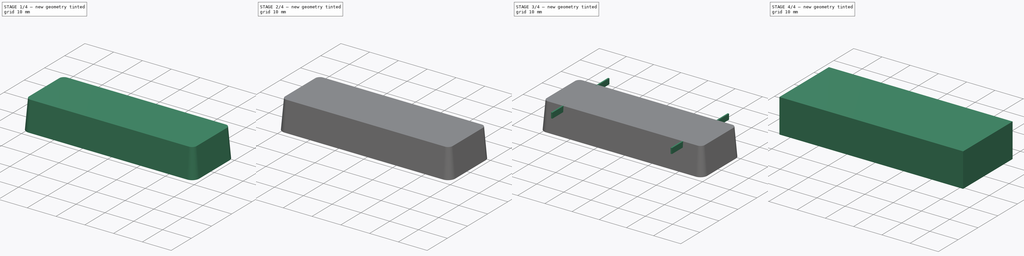
[diagram: build sequence overview — one tinted view per stage of 4, left to right]
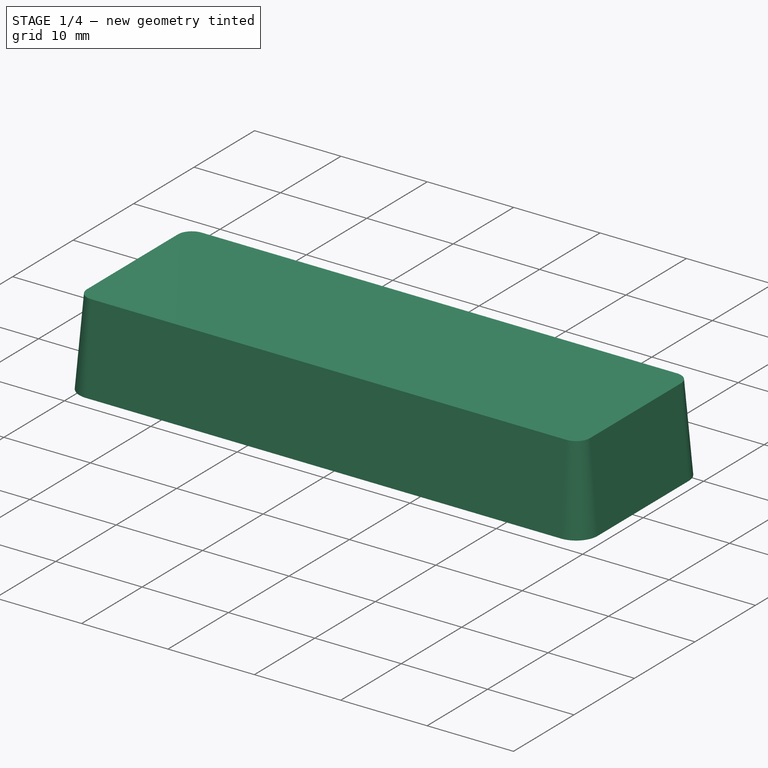
[diagram: stage 1 of 4 — iso view after this stage's code; geometry added in this stage tinted green]
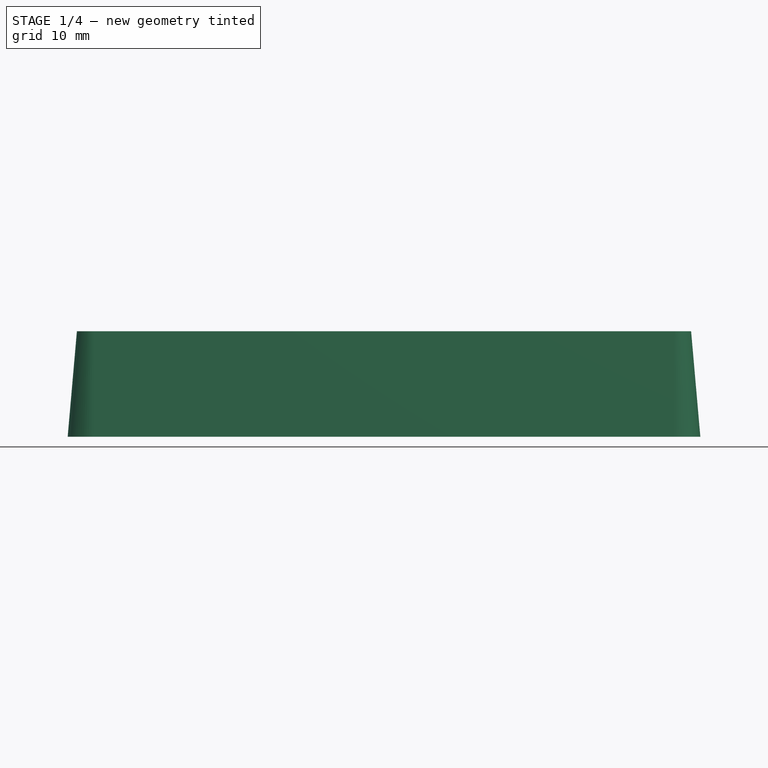
[diagram: stage 1 of 4 — front view after this stage's code; geometry added in this stage tinted green]
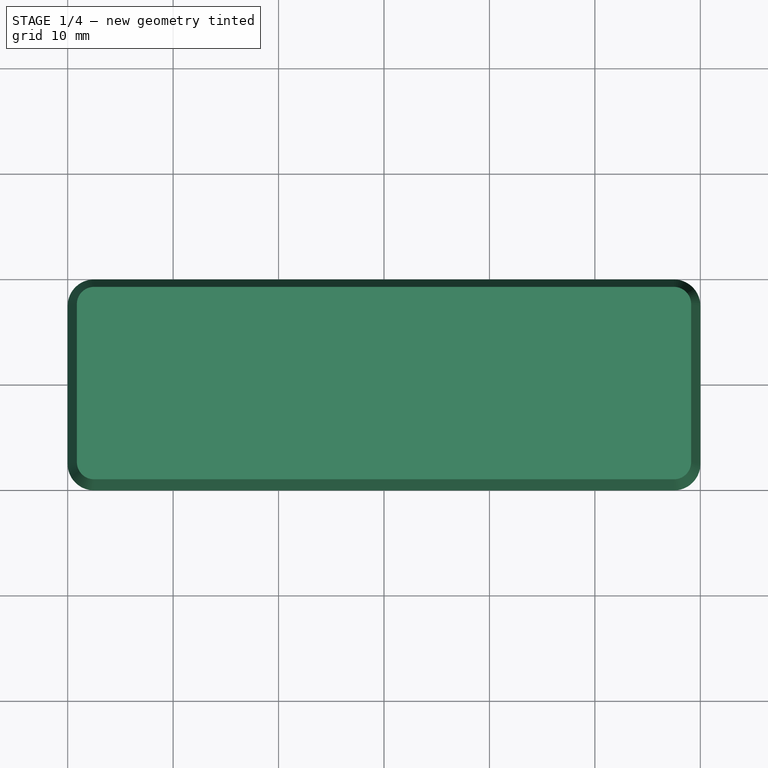
[diagram: stage 1 of 4 — top view after this stage's code; geometry added in this stage tinted green]
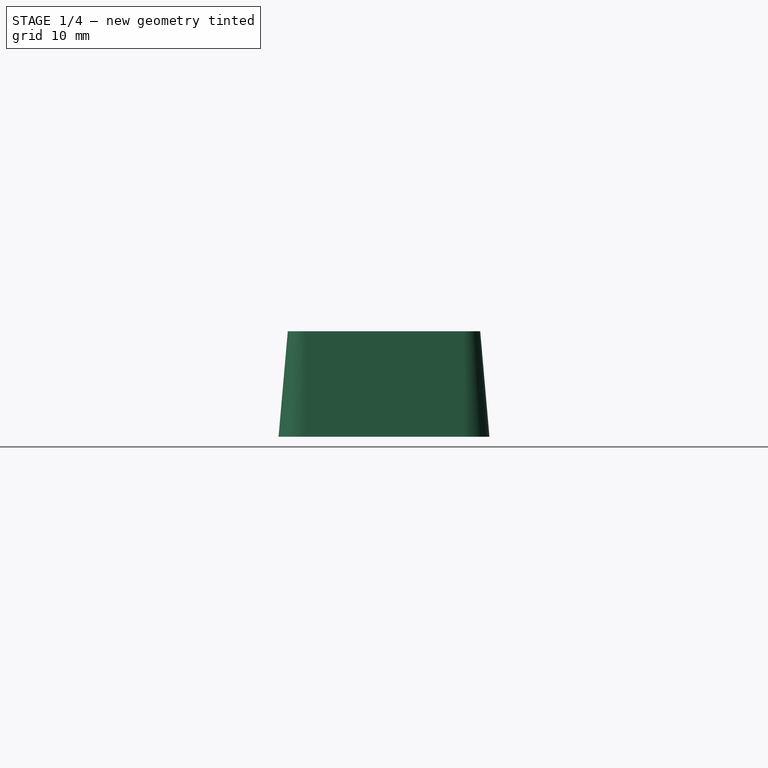
[diagram: stage 1 of 4 — right view after this stage's code; geometry added in this stage tinted green]
FCSTD DOCUMENT  (FreeCAD 0.16R6706 (Git))
Label: Mold_negative
License: All rights reserved
LicenseURL: http://en.wikipedia.org/wiki/All_rights_reserved
objects: Sketcher::SketchObject×4, Part::Box×3, PartDesign::Pad×3, Spreadsheet::Sheet×1, Part::MultiFuse×1, Part::Extrusion×1, Part::Cut×1
note: 16 computed .brp shape members not serialized (recipe doc carries the construction recipe); baked Part::Feature solids carry a one-line shape summary decoded from their .brp

FEATURE [Sketcher::SketchObject] Sketch003  label="Body001"
  expr: Constraints[11] = data.axle_offset
  expr: Constraints[10] = data.axle_offset
  sketch-geometry (4):
    g0: Circle CenterX=-18 CenterY=0 CenterZ=0 NormalX=0 NormalY=0 NormalZ=1 Radius=0.9
    g1: Circle CenterX=18 CenterY=0 CenterZ=0 NormalX=0 NormalY=0 NormalZ=1 Radius=0.9
    g2: Circle CenterX=-22 CenterY=0 CenterZ=0 NormalX=0 NormalY=0 NormalZ=1 Radius=0.5
    g3: Circle CenterX=22 CenterY=0 CenterZ=0 NormalX=0 NormalY=0 NormalZ=1 Radius=0.5
  constraints (12):
    c: DistanceX(g0,g-1) = 18
    c: DistanceX(g-1,g1) = 18
    c: Radius(g0) = 0.9
    c: Equal(g0,g1)
    c: DistanceY(g-1,g0) = 0
    c: DistanceY(g-1,g1) = 0
    c: Radius(g2) = 0.5
    c: Equal(g2,g3)
    c: DistanceY(g-1,g2) = 0
    c: DistanceY(g-1,g3) = 0
    c: DistanceX(g2,g-1) = 22
    c: DistanceX(g-1,g3) = 22
FEATURE [PartDesign::Pad] Pad
  Length = 5
  Length2 = 100
  Reversed = true
  Sketch = -> Sketch003
  Type = 0
FEATURE [Part::Extrusion] Extrude001
  Base = -> Sketch
  Dir = (0,0,10)
  Placement = pos=(0,0,-10) rot=(0,0,1;0rad)
  Solid = true
  TaperAngle = -5
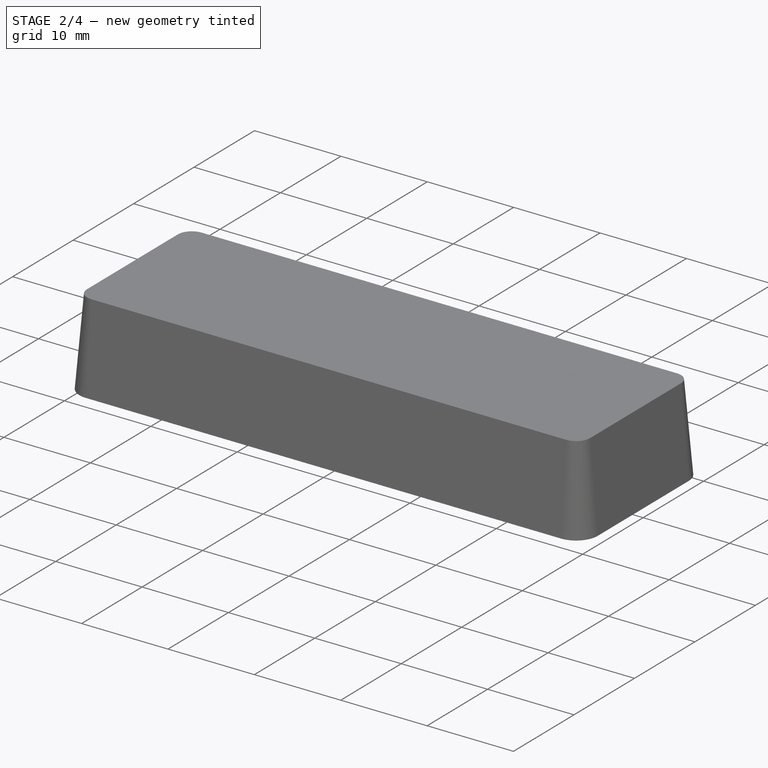
[diagram: stage 2 of 4 — iso view after this stage's code; geometry added in this stage tinted green]
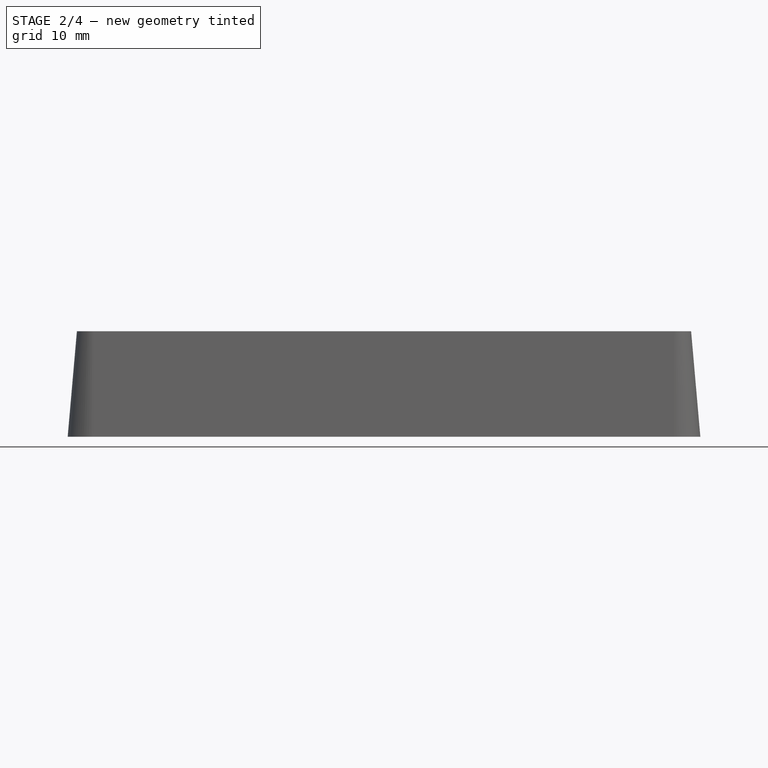
[diagram: stage 2 of 4 — front view after this stage's code; geometry added in this stage tinted green]
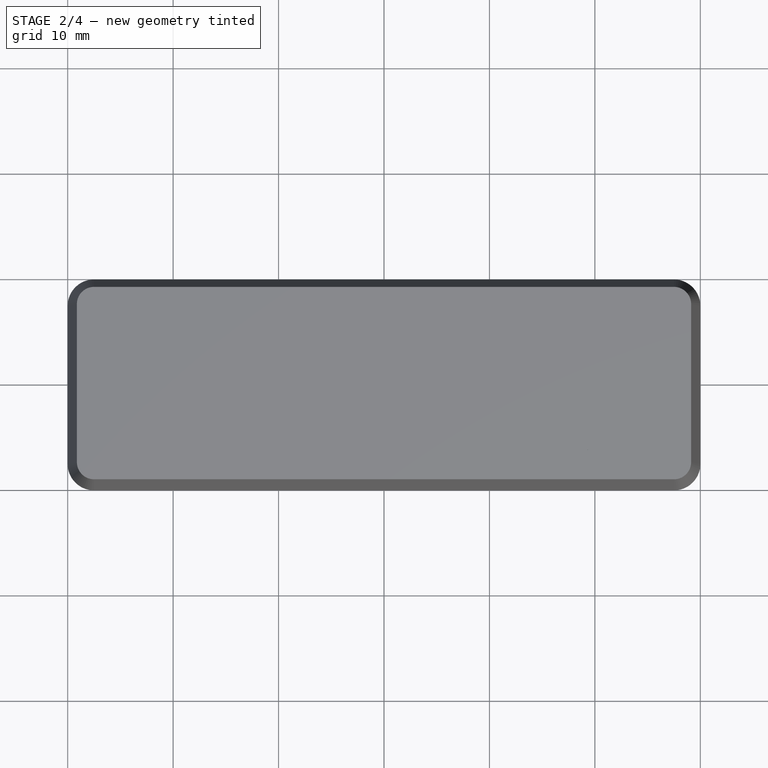
[diagram: stage 2 of 4 — top view after this stage's code; geometry added in this stage tinted green]
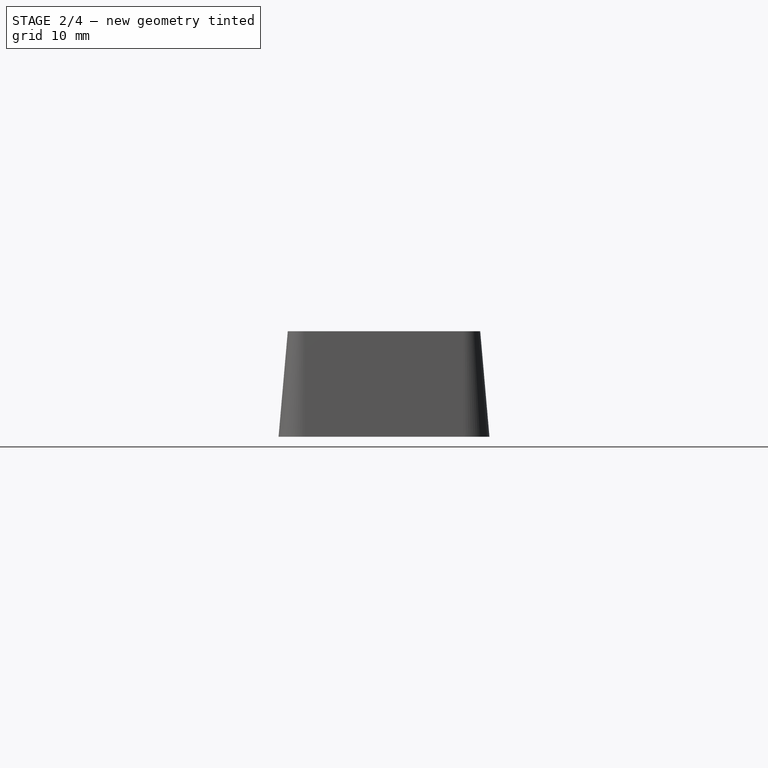
[diagram: stage 2 of 4 — right view after this stage's code; geometry added in this stage tinted green]
FEATURE [Sketcher::SketchObject] Sketch001  label="axle_retainer"
  Placement = pos=(0,0,-0.5) rot=(0,0,1;0rad)
  expr: Constraints[23] = data.axle_offset - 8mm
  expr: Constraints[22] = data.axle_offset - 8mm
  sketch-geometry (8):
    g0: LineSegment StartX=-26 StartY=4 StartZ=0 EndX=-14 EndY=4 EndZ=0
    g1: LineSegment StartX=-14 StartY=4 StartZ=0 EndX=-14 EndY=-4 EndZ=0
    g2: LineSegment StartX=-14 StartY=-4 StartZ=0 EndX=-26 EndY=-4 EndZ=0
    g3: LineSegment StartX=-26 StartY=-4 StartZ=0 EndX=-26 EndY=4 EndZ=0
    g4: LineSegment StartX=26 StartY=4 StartZ=0 EndX=14 EndY=4 EndZ=0
    g5: LineSegment StartX=14 StartY=4 StartZ=0 EndX=14 EndY=-4 EndZ=0
    g6: LineSegment StartX=14 StartY=-4 StartZ=0 EndX=26 EndY=-4 EndZ=0
    g7: LineSegment StartX=26 StartY=-4 StartZ=0 EndX=26 EndY=4 EndZ=0
  constraints (24):
    c: Coincident(g0,g1)
    c: Coincident(g1,g2)
    c: Coincident(g2,g3)
    c: Coincident(g3,g0)
    c: Horizontal(g0)
    c: Horizontal(g2)
    c: Vertical(g1)
    c: Vertical(g3)
    c: Coincident(g4,g5)
    c: Coincident(g5,g6)
    c: Coincident(g6,g7)
    c: Coincident(g7,g4)
    c: Horizontal(g4)
    c: Horizontal(g6)
    c: Vertical(g5)
    c: Vertical(g7)
    c: DistanceX(g0,g0) = 12
    c: DistanceY(g1,g0) = 8
    c: Symmetric(g0,g1,g-1)
    c: Symmetric(g4,g6,g-1)
    c: Equal(g4,g0)
    c: Equal(g1,g7)
    c: DistanceX(g0,g-1) = 14
    c: DistanceX(g-1,g4) = 14
FEATURE [PartDesign::Pad] Pad001  label="axle_retainer_cutout"
  Length = 0.5
  Length2 = 100
  Placement = pos=(0,0,-0.5) rot=(0,0,1;0rad)
  Sketch = -> Sketch001
  Type = 0
FEATURE [Sketcher::SketchObject] Sketch002  label="spring_holes"
  Placement = pos=(0,0,-5) rot=(0,0,1;0rad)
  expr: Constraints[8] = data.spring_hole_offset
  expr: Constraints[7] = data.spring_hole_offset
  expr: Constraints[6] = data.spring_hole_offset
  expr: Constraints[2] = data.spring_hole_offset
  expr: Constraints[0] = data.spring_hole_radius
  expr: Constraints[1] = data.axle_offset
  expr: Constraints[10] = data.axle_offset
  expr: Constraints[9] = data.axle_offset
  expr: Constraints[11] = data.axle_offset
  sketch-geometry (4):
    g0: Circle CenterX=-22 CenterY=5 CenterZ=0 NormalX=0 NormalY=0 NormalZ=1 Radius=3
    g1: Circle CenterX=-22 CenterY=-5 CenterZ=0 NormalX=0 NormalY=0 NormalZ=1 Radius=3
    g2: Circle CenterX=22 CenterY=5 CenterZ=0 NormalX=0 NormalY=0 NormalZ=1 Radius=3
    g3: Circle CenterX=22 CenterY=-5 CenterZ=0 NormalX=0 NormalY=0 NormalZ=1 Radius=3
  constraints (12):
    c: Radius(g0) = 3
    c: DistanceX(g0,g-1) = 22
    c: DistanceY(g-1,g0) = 5
    c: Equal(g0,g1)
    c: Equal(g1,g2)
    c: Equal(g2,g3)
    c: DistanceY(g1,g-1) = 5
    c: DistanceY(g3,g-1) = 5
    c: DistanceY(g-1,g2) = 5
    c: DistanceX(g-1,g2) = 22
    c: DistanceX(g3) = 22
    c: DistanceX(g1,g-1) = 22
FEATURE [PartDesign::Pad] Pad002  label="spring_hole_cutouts"
  Length = 5
  Length2 = 100
  Placement = pos=(0,0,-5) rot=(0,0,1;0rad)
  Sketch = -> Sketch002
  Type = 0
  expr: Length = 5mm
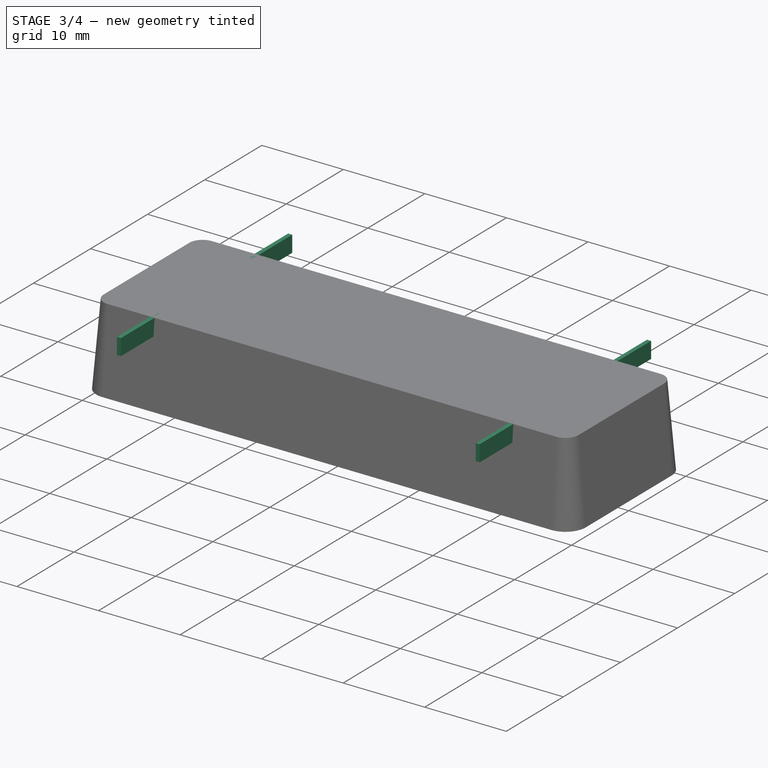
[diagram: stage 3 of 4 — iso view after this stage's code; geometry added in this stage tinted green]
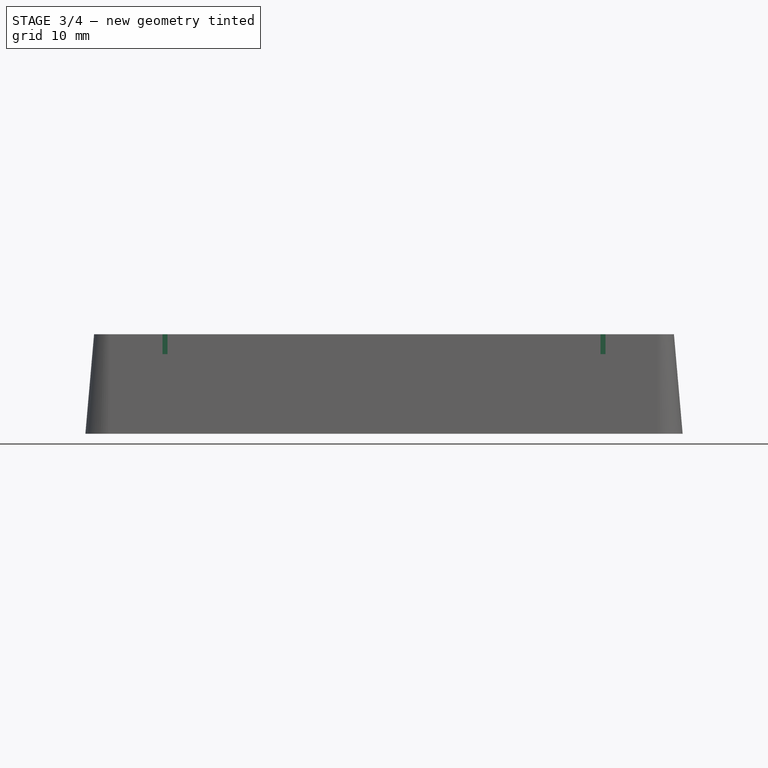
[diagram: stage 3 of 4 — front view after this stage's code; geometry added in this stage tinted green]
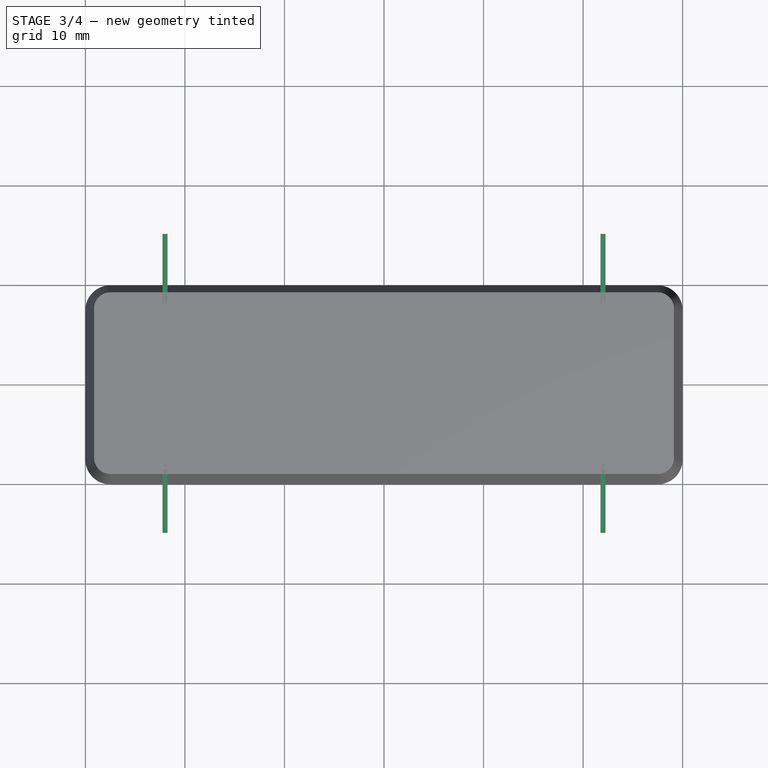
[diagram: stage 3 of 4 — top view after this stage's code; geometry added in this stage tinted green]
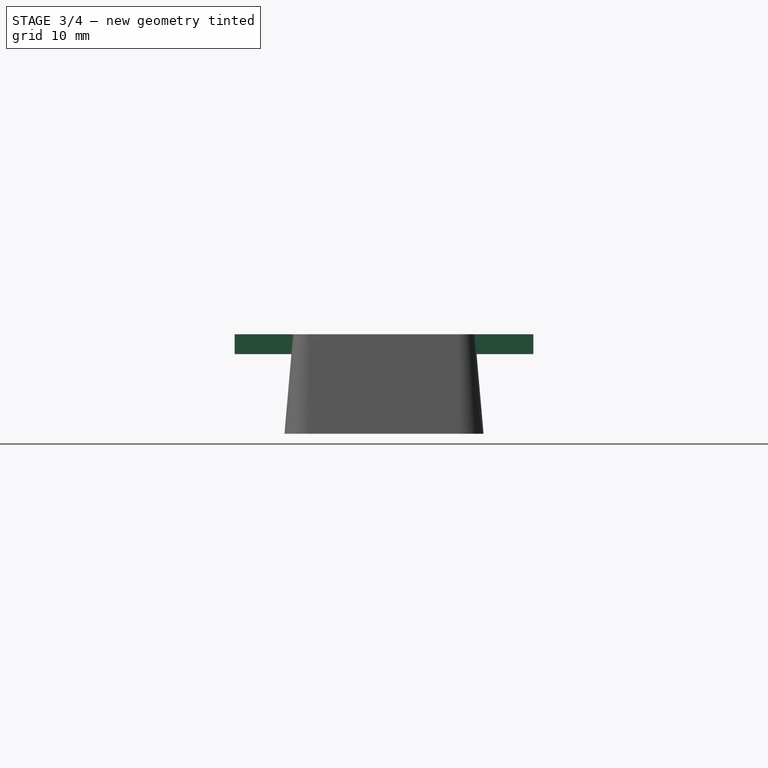
[diagram: stage 3 of 4 — right view after this stage's code; geometry added in this stage tinted green]
FEATURE [Spreadsheet::Sheet] Spreadsheet  label="data"
  cells = A2=width; B2(width)==20mm; A3=length; B3(length)==60mm; A4=thickness; B4(thickness)==10mm; A6=axle_width; B6(axle_width)==0.5mm; A7=axle_offset; B7(axle_offset)==22mm; C7=wheelbase / 2; A8=axle_height; B8(axle_height)==2mm; A10=spring_hole_radius; B10(spring_hole_radius)==3mm; A11=spring_hole_offset; B11(spring_hole_offset)==5mm
FEATURE [Sketcher::SketchObject] Sketch  label="Body"
  expr: Constraints[17] = data.width
  expr: Constraints[16] = data.length
  sketch-geometry (8):
    g0: LineSegment StartX=-27.5 StartY=10 StartZ=0 EndX=27.5 EndY=10 EndZ=0
    g1: LineSegment StartX=30 StartY=7.5 StartZ=0 EndX=30 EndY=-7.5 EndZ=0
    g2: LineSegment StartX=27.5 StartY=-10 StartZ=0 EndX=-27.5 EndY=-10 EndZ=0
    g3: LineSegment StartX=-30 StartY=-7.5 StartZ=0 EndX=-30 EndY=7.5 EndZ=0
    g4: ArcOfCircle CenterX=-27.5 CenterY=7.5 CenterZ=0 NormalX=0 NormalY=0 NormalZ=1 Radius=2.5 StartAngle=1.5708 EndAngle=3.14159
    g5: ArcOfCircle CenterX=-27.5 CenterY=-7.5 CenterZ=0 NormalX=0 NormalY=0 NormalZ=1 Radius=2.5 StartAngle=3.14159 EndAngle=4.71239
    g6: ArcOfCircle CenterX=27.5 CenterY=7.5 CenterZ=0 NormalX=0 NormalY=0 NormalZ=1 Radius=2.5 StartAngle=0 EndAngle=1.5708
    g7: ArcOfCircle CenterX=27.5 CenterY=-7.5 CenterZ=0 NormalX=0 NormalY=0 NormalZ=1 Radius=2.5 StartAngle=4.71239 EndAngle=6.28319
  constraints (19):
    c: Horizontal(g0)
    c: Horizontal(g2)
    c: Vertical(g1)
    c: Vertical(g3)
    c: Tangent(g0,g4) = 1.5708
    c: Tangent(g3,g4) = 1.5708
    c: Tangent(g2,g5) = 1.5708
    c: Tangent(g3,g5) = 1.5708
    c: Tangent(g0,g6) = 1.5708
    c: Tangent(g1,g6) = 1.5708
    c: Tangent(g1,g7) = 1.5708
    c: Tangent(g2,g7) = 1.5708
    c: Equal(g5,g4)
    c: Equal(g4,g6)
    c: Equal(g6,g7)
    c: Symmetric(g4,g7,g-1)
    c: DistanceX(g3,g1) = 60
    c: DistanceY(g2,g0) = 20
    c: Radius(g4) = 2.5
FEATURE [Part::Box] Box  label="Axle1 cutouts"
  Height = 2
  Length = 0.5
  Placement = pos=(21.75,-15,-2) rot=(0,0,1;0rad)
  Width = 30
  expr: Length = data.axle_width
  expr: Height = data.axle_height
  expr: Placement.Base.x = data.axle_offset - 0.5 * data.axle_width
FEATURE [Part::Box] Box001  label="Axle2 cutouts"
  Height = 2
  Length = 0.5
  Placement = pos=(-22.25,-15,-2) rot=(0,0,1;0rad)
  Width = 30
  expr: Length = data.axle_width
  expr: Height = data.axle_height
  expr: Placement.Base.x = -data.axle_offset - data.axle_width / 2
FEATURE [Part::MultiFuse] Fusion  label="cutouts"
  Shapes = -> [Pad002,Pad001,Box001,Box,Pad]
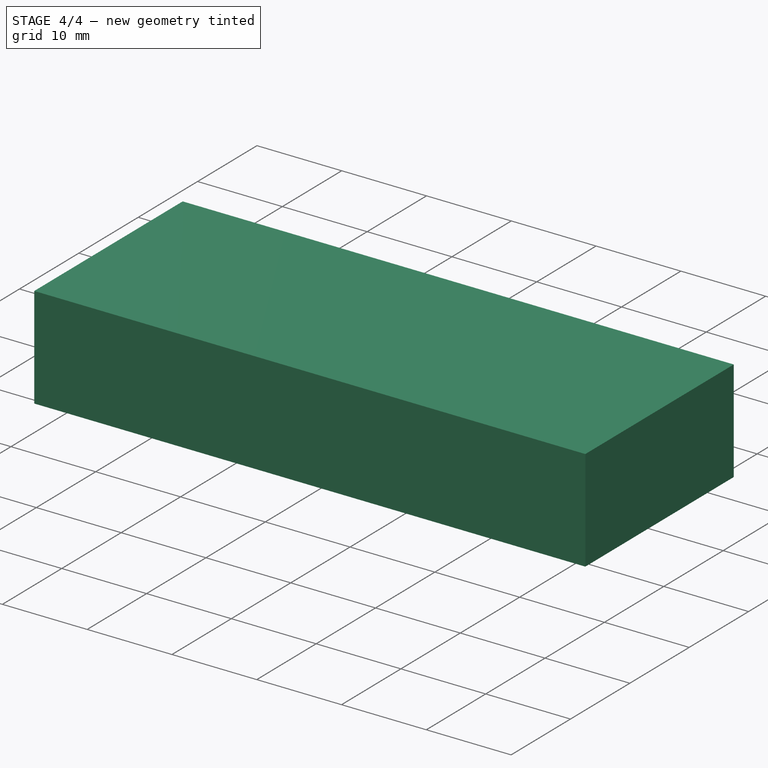
[diagram: stage 4 of 4 — iso view after this stage's code; geometry added in this stage tinted green]
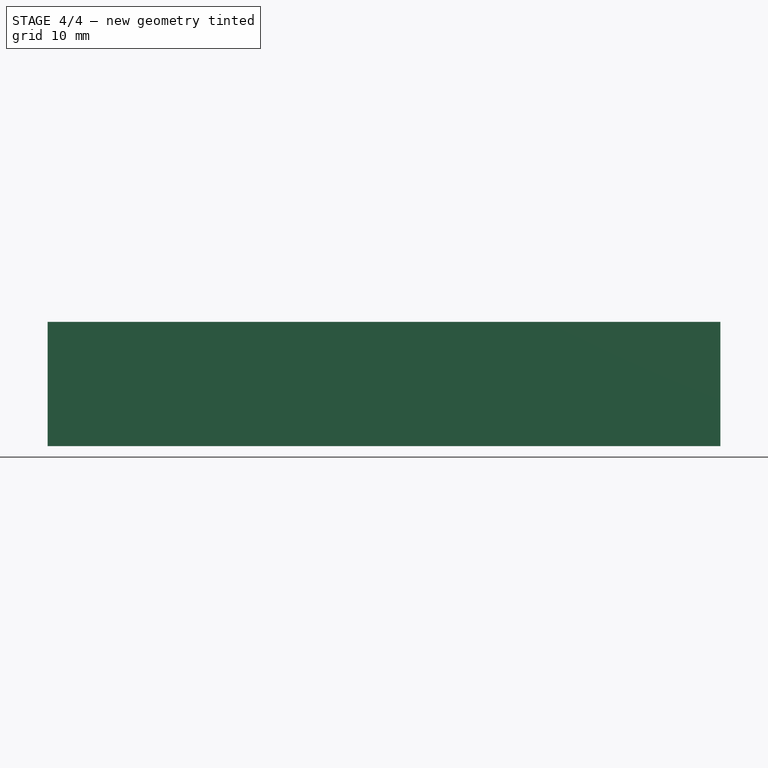
[diagram: stage 4 of 4 — front view after this stage's code; geometry added in this stage tinted green]
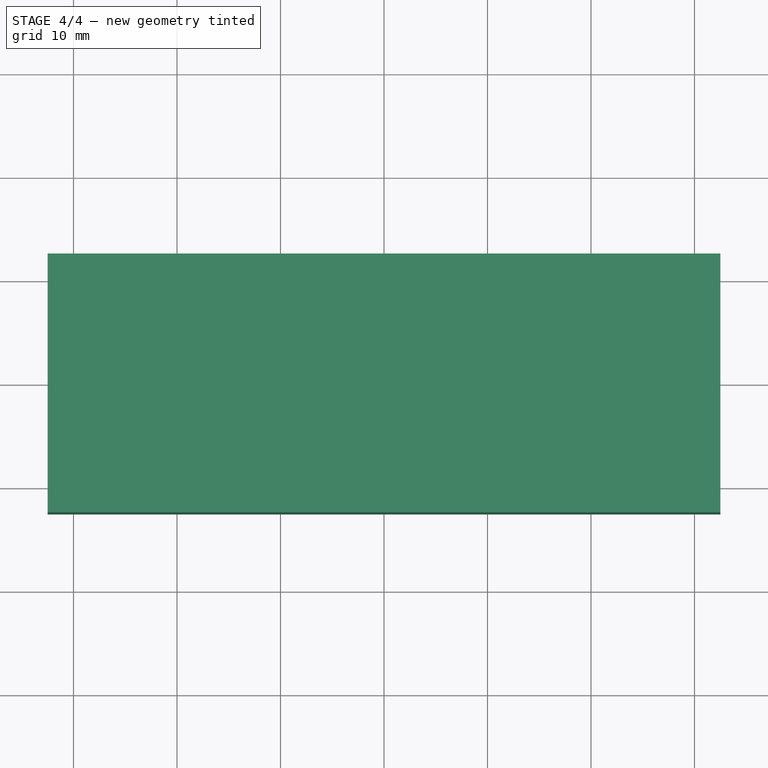
[diagram: stage 4 of 4 — top view after this stage's code; geometry added in this stage tinted green]
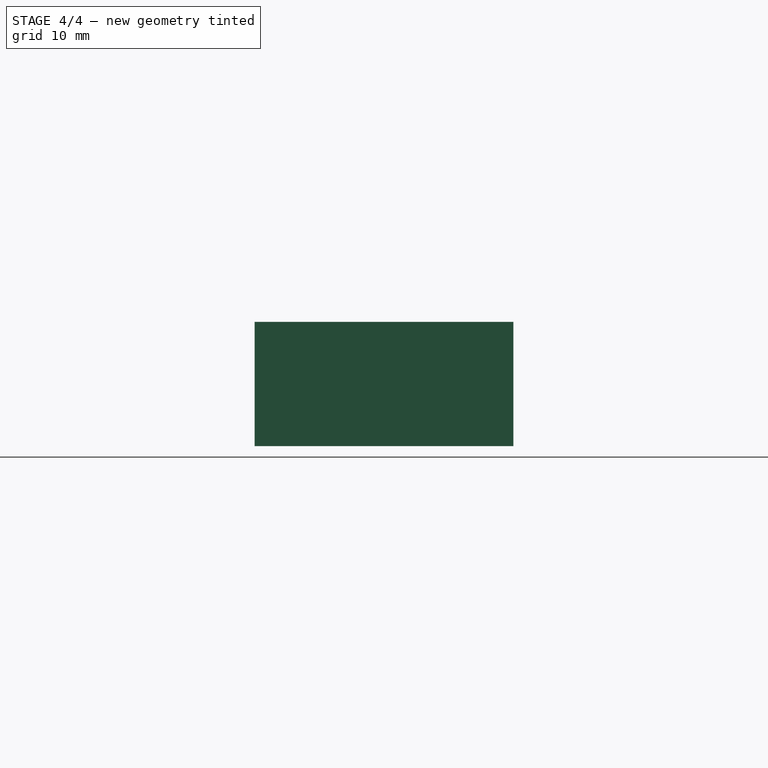
[diagram: stage 4 of 4 — right view after this stage's code; geometry added in this stage tinted green]
FEATURE [Part::Box] Box002  label="Cube"
  Height = 12
  Length = 65
  Placement = pos=(-32.5,-12.5,-10) rot=(0,0,1;0rad)
  Width = 25
  expr: Placement.Base.y = -data.width / 2 - 2.5mm
  expr: Placement.Base.x = -data.length / 2 - 2.5mm
  expr: Width = data.width + 5mm
  expr: Length = data.length + 5mm
FEATURE [Part::Cut] Cut
  Base = -> Extrude001
  Tool = -> Fusion
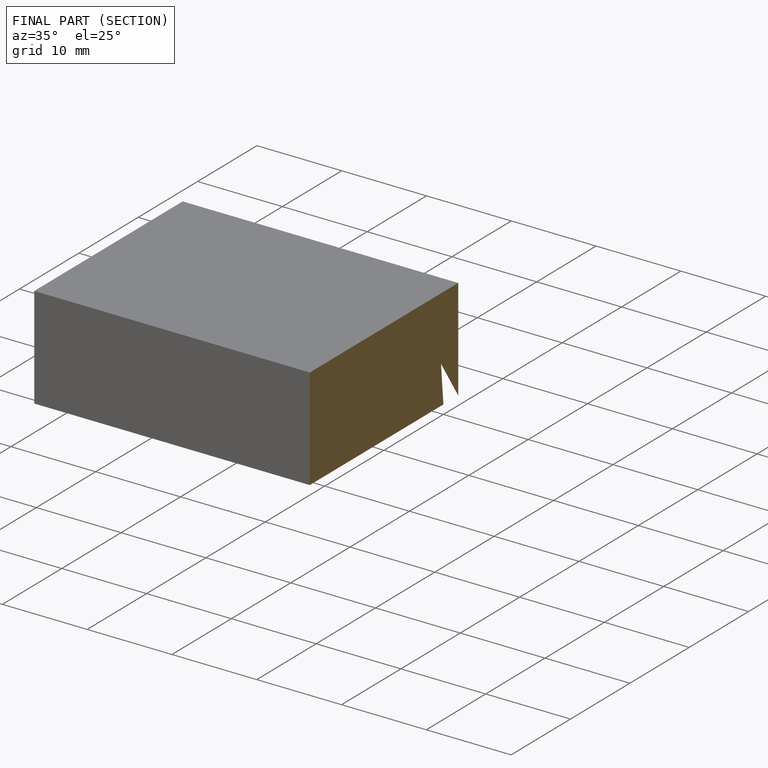
[diagram: finished part — half-section view (interior)]
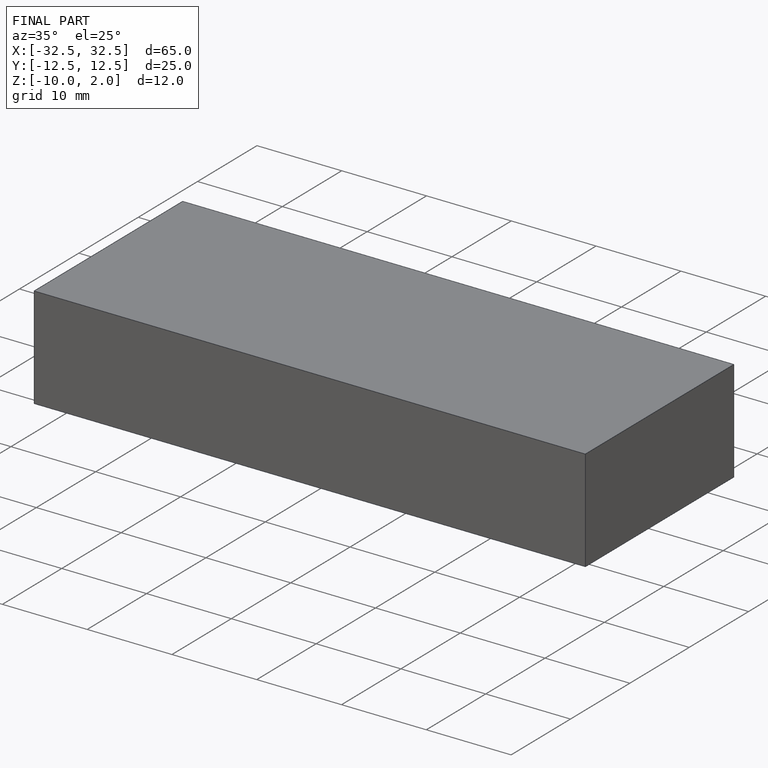
[diagram: finished part — iso view with bounding-box wireframe]
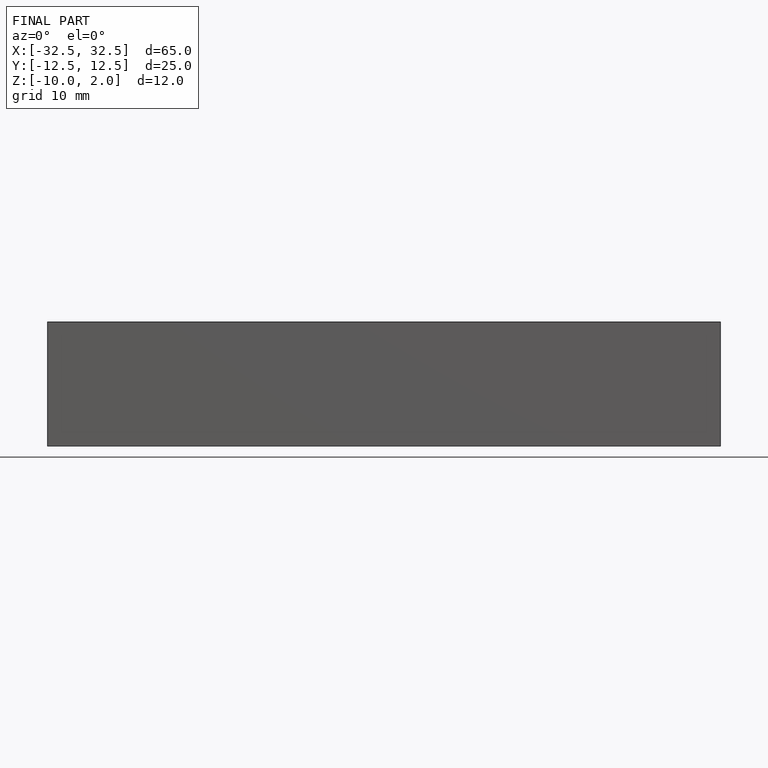
[diagram: finished part — front view with bounding-box wireframe]
